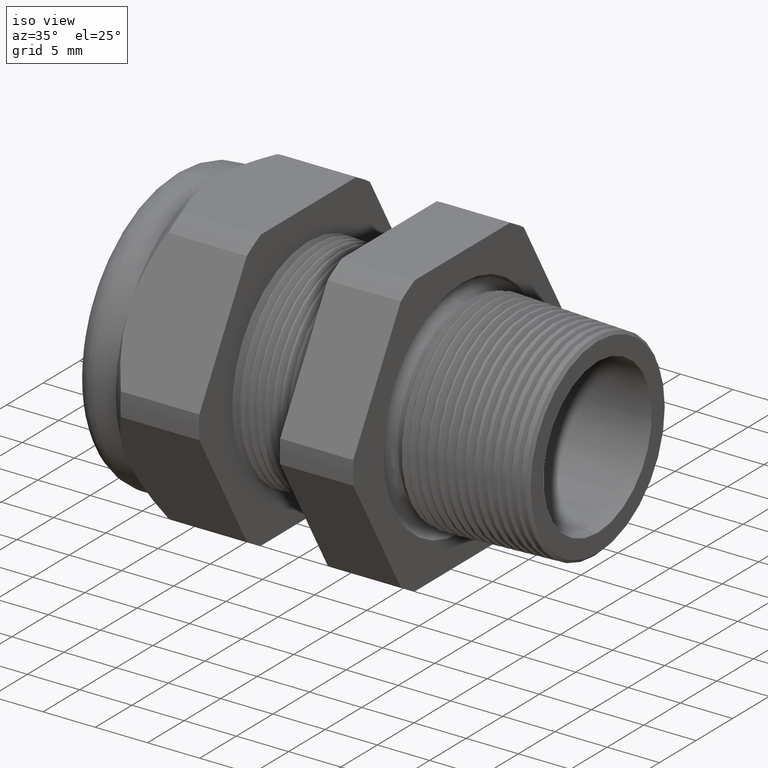
[diagram: clean part render]
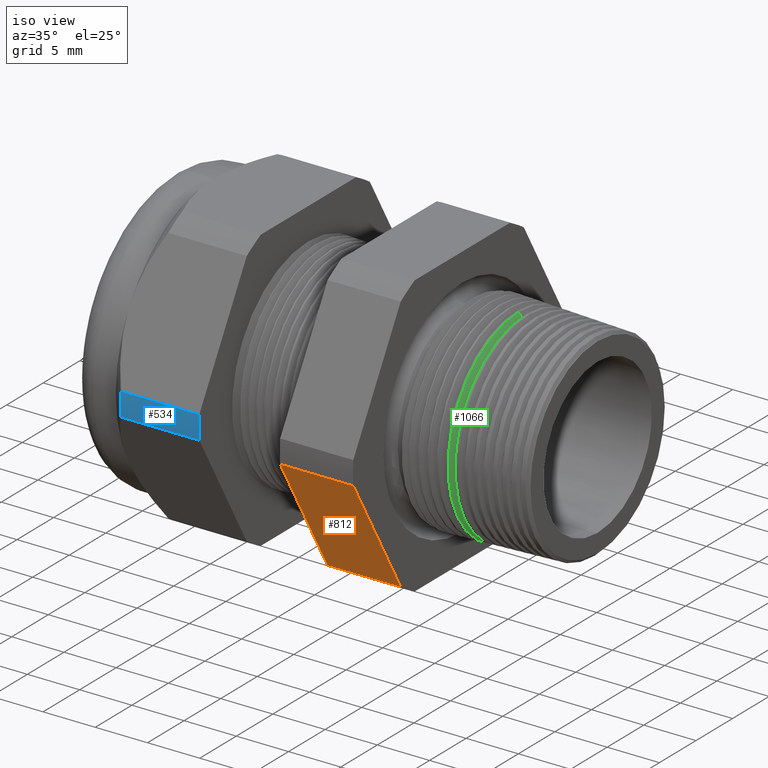
[diagram: same view with three faces highlighted in distinct colors, each labeled with its STEP entity id]
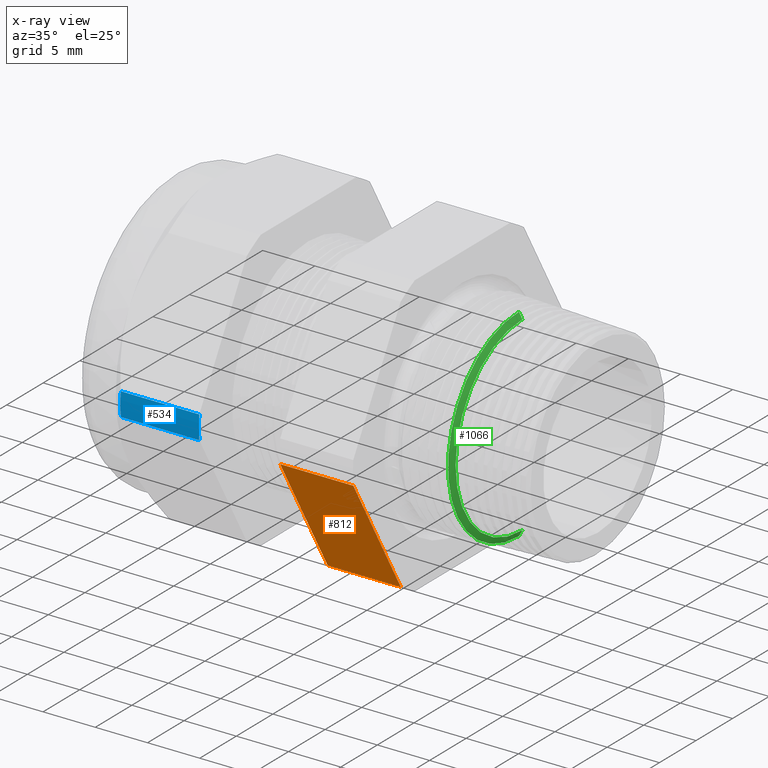
[diagram: x-ray of the same camera — body ghosted, the three highlighted faces saturated]
A machine part, iso view with three faces highlighted in distinct colors.
The next image is the same camera in x-ray (body ghosted, the three faces saturated) — at least one of them is partly hidden behind the body in this view.
Their STEP definitions:

[orange] entity #812 — the highlighted planar face has unit normal (0, -0.866, -0.5).
#588 = VERTEX_POINT ( 'NONE', #2727 ) ;
#590 = EDGE_CURVE ( 'NONE', #588, #591, #2726, .T. ) ;
#591 = VERTEX_POINT ( 'NONE', #2722 ) ;
#678 = VERTEX_POINT ( 'NONE', #2934 ) ;
#680 = EDGE_CURVE ( 'NONE', #678, #681, #2933, .T. ) ;
#681 = VERTEX_POINT ( 'NONE', #2929 ) ;
#810 = EDGE_CURVE ( 'NONE', #588, #681, #3080, .T. ) ;
#812 = ADVANCED_FACE ( 'NONE', ( #3137 ), #3136, .T. ) ;
#813 = EDGE_LOOP ( 'NONE', ( #814, #815, #816, #818 ) ) ;
#814 = ORIENTED_EDGE ( 'NONE', *, *, #810, .T. ) ;
#815 = ORIENTED_EDGE ( 'NONE', *, *, #680, .F. ) ;
#816 = ORIENTED_EDGE ( 'NONE', *, *, #817, .F. ) ;
#817 = EDGE_CURVE ( 'NONE', #591, #678, #3131, .T. ) ;
#818 = ORIENTED_EDGE ( 'NONE', *, *, #590, .F. ) ;
#2722 = CARTESIAN_POINT ( 'NONE',  ( -0.3099999999999998300, -0.3313250556190258700, -0.4861281698472630400 ) ) ;
#2723 = DIRECTION ( 'NONE',  ( 0.0000000000000000000, 0.5000000000000001100, -0.8660254037844386000 ) ) ;
#2724 = VECTOR ( 'NONE', #2723, 39.37007874015748100 ) ;
#2725 = CARTESIAN_POINT ( 'NONE',  ( -0.3100000000000000000, -0.1939934640057524300, -0.7239934640057528200 ) ) ;
#2726 = LINE ( 'NONE', #2725, #2724 ) ;
#2727 = CARTESIAN_POINT ( 'NONE',  ( -0.3099999999999998300, -0.5866618723924791300, -0.04387183015273717100 ) ) ;
#2929 = CARTESIAN_POINT ( 'NONE',  ( -0.5855905511811020400, -0.5866618723924791300, -0.04387183015273717100 ) ) ;
#2930 = DIRECTION ( 'NONE',  ( 0.0000000000000000000, -0.5000000000000001100, 0.8660254037844386000 ) ) ;
#2931 = VECTOR ( 'NONE', #2930, 39.37007874015748100 ) ;
#2932 = CARTESIAN_POINT ( 'NONE',  ( -0.5855905511811022600, -0.1939934640057524300, -0.7239934640057528200 ) ) ;
#2933 = LINE ( 'NONE', #2932, #2931 ) ;
#2934 = CARTESIAN_POINT ( 'NONE',  ( -0.5855905511811020400, -0.3313250556190258700, -0.4861281698472630400 ) ) ;
#3079 = CARTESIAN_POINT ( 'NONE',  ( 0.2000000000000000400, -0.5866618723924791300, -0.04387183015273717100 ) ) ;
#3080 = LINE ( 'NONE', #3079, #3139 ) ;
#3128 = DIRECTION ( 'NONE',  ( -1.000000000000000000, 0.0000000000000000000, 0.0000000000000000000 ) ) ;
#3129 = VECTOR ( 'NONE', #3128, 39.37007874015748100 ) ;
#3130 = CARTESIAN_POINT ( 'NONE',  ( 0.2000000000000000400, -0.3313250556190258700, -0.4861281698472630400 ) ) ;
#3131 = LINE ( 'NONE', #3130, #3129 ) ;
#3132 = DIRECTION ( 'NONE',  ( 0.0000000000000000000, 0.5000000000000001100, -0.8660254037844386000 ) ) ;
#3133 = DIRECTION ( 'NONE',  ( 0.0000000000000000000, -0.8660254037844386000, -0.5000000000000001100 ) ) ;
#3134 = CARTESIAN_POINT ( 'NONE',  ( 0.2000000000000000400, -0.3313250556190259800, -0.4861281698472630400 ) ) ;
#3135 = AXIS2_PLACEMENT_3D ( 'NONE', #3134, #3133, #3132 ) ;
#3136 = PLANE ( 'NONE',  #3135 ) ;
#3137 = FACE_OUTER_BOUND ( 'NONE', #813, .T. ) ;
#3138 = DIRECTION ( 'NONE',  ( -1.000000000000000000, 0.0000000000000000000, 0.0000000000000000000 ) ) ;
#3139 = VECTOR ( 'NONE', #3138, 39.37007874015748100 ) ;

[blue] entity #534 — the highlighted cylindrical surface (partial cylindrical patch) has radius 14.9428 mm, axis along (-1, 0, 0).
#467 = EDGE_CURVE ( 'NONE', #468, #469, #2465, .T. ) ;
#468 = VERTEX_POINT ( 'NONE', #2461 ) ;
#469 = VERTEX_POINT ( 'NONE', #2460 ) ;
#515 = ORIENTED_EDGE ( 'NONE', *, *, #467, .F. ) ;
#516 = ORIENTED_EDGE ( 'NONE', *, *, #517, .F. ) ;
#517 = EDGE_CURVE ( 'NONE', #538, #468, #2602, .T. ) ;
#534 = ADVANCED_FACE ( 'NONE', ( #2612 ), #2610, .T. ) ;
#535 = EDGE_LOOP ( 'NONE', ( #536, #540, #515, #516 ) ) ;
#536 = ORIENTED_EDGE ( 'NONE', *, *, #537, .T. ) ;
#537 = EDGE_CURVE ( 'NONE', #538, #539, #2611, .T. ) ;
#538 = VERTEX_POINT ( 'NONE', #2658 ) ;
#539 = VERTEX_POINT ( 'NONE', #2657 ) ;
#540 = ORIENTED_EDGE ( 'NONE', *, *, #541, .T. ) ;
#541 = EDGE_CURVE ( 'NONE', #539, #469, #2656, .T. ) ;
#2460 = CARTESIAN_POINT ( 'NONE',  ( -1.186345669291338600, -0.5866618723924791300, -0.04387183015273717100 ) ) ;
#2461 = CARTESIAN_POINT ( 'NONE',  ( -0.8903149606299207700, -0.5866618723924791300, -0.04387183015273717100 ) ) ;
#2462 = DIRECTION ( 'NONE',  ( -1.000000000000000000, 0.0000000000000000000, 0.0000000000000000000 ) ) ;
#2463 = VECTOR ( 'NONE', #2462, 39.37007874015748100 ) ;
#2464 = CARTESIAN_POINT ( 'NONE',  ( 0.2000000000000000400, -0.5866618723924791300, -0.04387183015273717100 ) ) ;
#2465 = LINE ( 'NONE', #2464, #2463 ) ;
#2598 = DIRECTION ( 'NONE',  ( 0.0000000000000000000, 0.0000000000000000000, -1.000000000000000000 ) ) ;
#2599 = DIRECTION ( 'NONE',  ( 1.000000000000000000, 0.0000000000000000000, 0.0000000000000000000 ) ) ;
#2600 = CARTESIAN_POINT ( 'NONE',  ( -0.8903149606299211000, 0.0000000000000000000, 0.0000000000000000000 ) ) ;
#2601 = AXIS2_PLACEMENT_3D ( 'NONE', #2600, #2599, #2598 ) ;
#2602 = CIRCLE ( 'NONE', #2601, 0.5883000000000000500 ) ;
#2604 = VECTOR ( 'NONE', #2659, 39.37007874015748100 ) ;
#2605 = CARTESIAN_POINT ( 'NONE',  ( 0.2000000000000000400, -0.5866618723924792400, 0.04387183015273651100 ) ) ;
#2606 = DIRECTION ( 'NONE',  ( 0.0000000000000000000, 0.0000000000000000000, 1.000000000000000000 ) ) ;
#2607 = DIRECTION ( 'NONE',  ( -1.000000000000000000, 0.0000000000000000000, 0.0000000000000000000 ) ) ;
#2608 = CARTESIAN_POINT ( 'NONE',  ( 0.2000000000000000400, 0.0000000000000000000, 0.0000000000000000000 ) ) ;
#2609 = AXIS2_PLACEMENT_3D ( 'NONE', #2608, #2607, #2606 ) ;
#2610 = CYLINDRICAL_SURFACE ( 'NONE', #2609, 0.5883000000000000500 ) ;
#2611 = LINE ( 'NONE', #2605, #2604 ) ;
#2612 = FACE_OUTER_BOUND ( 'NONE', #535, .T. ) ;
#2652 = DIRECTION ( 'NONE',  ( 0.0000000000000000000, 0.0000000000000000000, -1.000000000000000000 ) ) ;
#2653 = DIRECTION ( 'NONE',  ( 1.000000000000000000, 0.0000000000000000000, 0.0000000000000000000 ) ) ;
#2654 = CARTESIAN_POINT ( 'NONE',  ( -1.186345669291338600, 0.0000000000000000000, 0.0000000000000000000 ) ) ;
#2655 = AXIS2_PLACEMENT_3D ( 'NONE', #2654, #2653, #2652 ) ;
#2656 = CIRCLE ( 'NONE', #2655, 0.5883000000000000500 ) ;
#2657 = CARTESIAN_POINT ( 'NONE',  ( -1.186345669291338300, -0.5866618723924792400, 0.04387183015273658100 ) ) ;
#2658 = CARTESIAN_POINT ( 'NONE',  ( -0.8903149606299207700, -0.5866618723924792400, 0.04387183015273651100 ) ) ;
#2659 = DIRECTION ( 'NONE',  ( -1.000000000000000000, 0.0000000000000000000, 0.0000000000000000000 ) ) ;

[green] entity #1066 — the highlighted conical surface has half-angle 62 deg.
#1066 = ADVANCED_FACE ( 'NONE', ( #3462 ), #3461, .T. ) ;
#1067 = EDGE_LOOP ( 'NONE', ( #1068, #1069, #1071, #1072 ) ) ;
#1068 = ORIENTED_EDGE ( 'NONE', *, *, #1466, .F. ) ;
#1069 = ORIENTED_EDGE ( 'NONE', *, *, #1070, .F. ) ;
#1070 = EDGE_CURVE ( 'NONE', #1472, #1404, #3460, .T. ) ;
#1071 = ORIENTED_EDGE ( 'NONE', *, *, #1473, .T. ) ;
#1072 = ORIENTED_EDGE ( 'NONE', *, *, #5206, .T. ) ;
#1404 = VERTEX_POINT ( 'NONE', #4033 ) ;
#1466 = EDGE_CURVE ( 'NONE', #1404, #1468, #4114, .T. ) ;
#1468 = VERTEX_POINT ( 'NONE', #4106 ) ;
#1471 = VERTEX_POINT ( 'NONE', #4100 ) ;
#1472 = VERTEX_POINT ( 'NONE', #4099 ) ;
#1473 = EDGE_CURVE ( 'NONE', #1472, #1471, #4098, .T. ) ;
#3452 = DIRECTION ( 'NONE',  ( 0.0000000000000000000, 0.0000000000000000000, -1.000000000000000000 ) ) ;
#3453 = DIRECTION ( 'NONE',  ( 1.000000000000000000, 0.0000000000000000000, 0.0000000000000000000 ) ) ;
#3454 = CARTESIAN_POINT ( 'NONE',  ( -0.08373702801092090800, 0.0000000000000000000, 0.0000000000000000000 ) ) ;
#3455 = AXIS2_PLACEMENT_3D ( 'NONE', #3454, #3453, #3452 ) ;
#3456 = DIRECTION ( 'NONE',  ( 0.0000000000000000000, 0.0000000000000000000, 1.000000000000000000 ) ) ;
#3457 = DIRECTION ( 'NONE',  ( -1.000000000000000000, 0.0000000000000000000, 0.0000000000000000000 ) ) ;
#3458 = CARTESIAN_POINT ( 'NONE',  ( -0.09999999999999982500, 0.0000000000000000000, 0.0000000000000000000 ) ) ;
#3459 = AXIS2_PLACEMENT_3D ( 'NONE', #3458, #3457, #3456 ) ;
#3460 = CIRCLE ( 'NONE', #3455, 0.3591487532021881400 ) ;
#3461 = CONICAL_SURFACE ( 'NONE', #3459, 0.3897349550272340400, 1.082104136236471400 ) ;
#3462 = FACE_OUTER_BOUND ( 'NONE', #1067, .T. ) ;
#4033 = CARTESIAN_POINT ( 'NONE',  ( -0.08373702801092090800, 4.539836756089259800E-017, -0.3591487532021881400 ) ) ;
#4098 = LINE ( 'NONE', #4160, #4159 ) ;
#4099 = CARTESIAN_POINT ( 'NONE',  ( -0.08373702801092090800, 0.0000000000000000000, 0.3591487532021881400 ) ) ;
#4100 = CARTESIAN_POINT ( 'NONE',  ( -0.09602701323886063400, 0.0000000000000000000, 0.3822628536790891300 ) ) ;
#4106 = CARTESIAN_POINT ( 'NONE',  ( -0.09602701323886063400, 4.683099710653434300E-017, -0.3822628536790891300 ) ) ;
#4107 = DIRECTION ( 'NONE',  ( -0.4694715627859021900, 1.081298943409537900E-016, -0.8829475928589208800 ) ) ;
#4108 = VECTOR ( 'NONE', #4107, 39.37007874015748100 ) ;
#4109 = CARTESIAN_POINT ( 'NONE',  ( -0.09999999999999982500, 4.772876651899397700E-017, -0.3897349550272340400 ) ) ;
#4114 = LINE ( 'NONE', #4109, #4108 ) ;
#4158 = DIRECTION ( 'NONE',  ( -0.4694715627859021900, 0.0000000000000000000, 0.8829475928589208800 ) ) ;
#4159 = VECTOR ( 'NONE', #4158, 39.37007874015748100 ) ;
#4160 = CARTESIAN_POINT ( 'NONE',  ( -0.09999999999999982500, 0.0000000000000000000, 0.3897349550272340400 ) ) ;
#4444 = DIRECTION ( 'NONE',  ( 0.0000000000000000000, 0.0000000000000000000, 1.000000000000000000 ) ) ;
#4445 = DIRECTION ( 'NONE',  ( 1.000000000000000000, 0.0000000000000000000, 0.0000000000000000000 ) ) ;
#4446 = CARTESIAN_POINT ( 'NONE',  ( -0.09602701323886063400, 0.0000000000000000000, 0.0000000000000000000 ) ) ;
#4447 = AXIS2_PLACEMENT_3D ( 'NONE', #4446, #4445, #4444 ) ;
#4448 = CIRCLE ( 'NONE', #4447, 0.3822628536790891300 ) ;
#5206 = EDGE_CURVE ( 'NONE', #1471, #1468, #4448, .T. ) ;